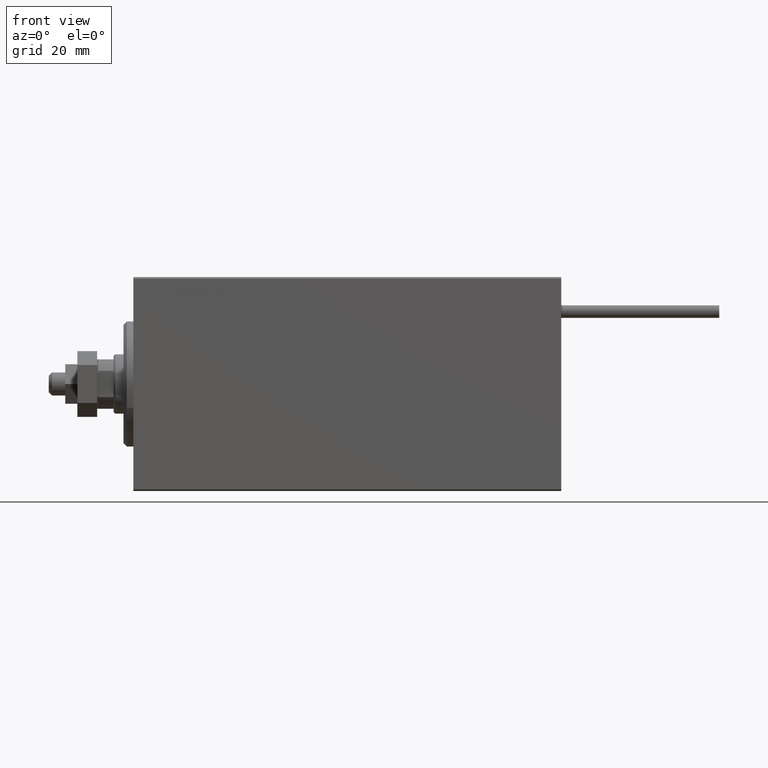
[diagram: clean part render]
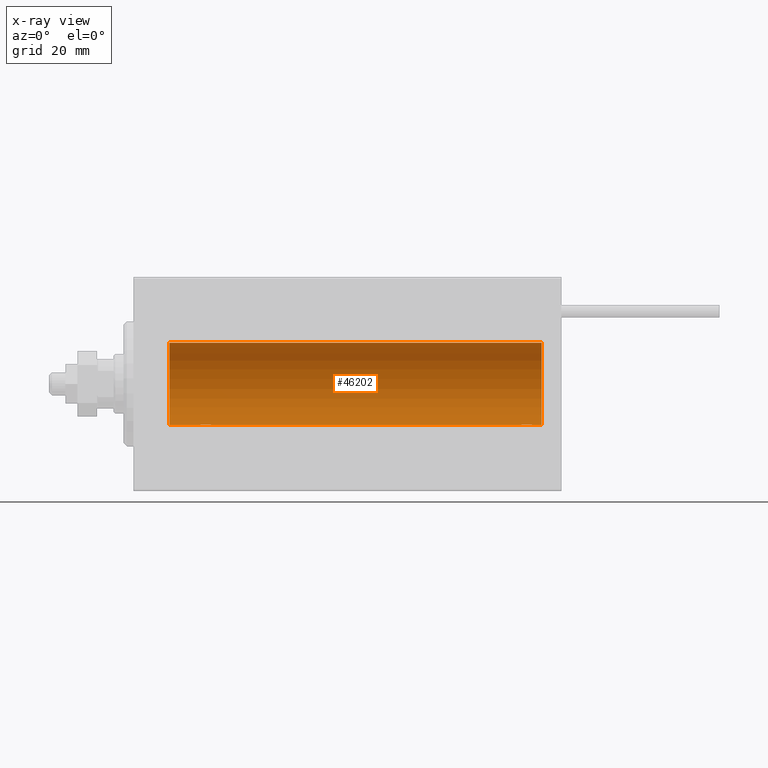
[diagram: x-ray — body ghosted, one internal face saturated and labeled with its STEP entity id]
A machine part, front view, then the same camera in x-ray: the body is ghosted and one INTERNAL B-rep face — a face not visible from any outside direction — is saturated and labeled: STEP entity #46202.
In plain terms, the highlighted cylindrical surface (partial cylindrical patch) has radius 12.5 mm, axis along (-1, -0, -0).
Its self-contained STEP definition (entity closure, byte-faithful):
#1023 = VERTEX_POINT ( 'NONE', #5973 ) ;
#1046 = DIRECTION ( 'NONE',  ( -1.000000000000000000, 0.000000000000000000, 0.000000000000000000 ) ) ;
#1244 = CARTESIAN_POINT ( 'NONE',  ( 121.2974249191616138, 0.8868029758979325550, -12.46909283808506430 ) ) ;
#1655 = DIRECTION ( 'NONE',  ( -1.000000000000000000, -0.000000000000000000, -0.000000000000000000 ) ) ;
#1696 = DIRECTION ( 'NONE',  ( 0.000000000000000000, 0.000000000000000000, 1.000000000000000000 ) ) ;
#1699 = AXIS2_PLACEMENT_3D ( 'NONE', #20491, #15907, #12105 ) ;
#2008 = CARTESIAN_POINT ( 'NONE',  ( 117.5000000000000142, -1.169483437805093529E-14, -12.50000000000000000 ) ) ;
#2039 = CARTESIAN_POINT ( 'NONE',  ( 19.99999999999999645, -3.966047509268588167E-15, -12.50000000000000000 ) ) ;
#2210 = VERTEX_POINT ( 'NONE', #23692 ) ;
#2255 = CARTESIAN_POINT ( 'NONE',  ( 120.7198079059458138, 1.590288205413961986, -12.39864157855465265 ) ) ;
#2386 = CARTESIAN_POINT ( 'NONE',  ( 20.26446744561862801, 1.002494658017155871, -12.46021263690096958 ) ) ;
#2559 = VECTOR ( 'NONE', #41301, 1000.000000000000000 ) ;
#3391 = CARTESIAN_POINT ( 'NONE',  ( 22.12992629360264729, 2.000049200055402210, -12.33895470450623044 ) ) ;
#3560 = EDGE_LOOP ( 'NONE', ( #14098, #5372, #36363, #6960, #27789, #5534, #29199, #25796 ) ) ;
#4709 = CARTESIAN_POINT ( 'NONE',  ( 117.5000000000000142, -1.169483437805093529E-14, -12.50000000000000000 ) ) ;
#4760 = CARTESIAN_POINT ( 'NONE',  ( 20.10252270298193622, 0.6455696738844897142, -12.48390768591463207 ) ) ;
#4808 = CARTESIAN_POINT ( 'NONE',  ( 124.0000000000000000, 1.530808498934191521E-15, -12.50000000000000000 ) ) ;
#4960 = CYLINDRICAL_SURFACE ( 'NONE', #1699, 12.50000000000000000 ) ;
#5372 = ORIENTED_EDGE ( 'NONE', *, *, #17169, .F. ) ;
#5534 = ORIENTED_EDGE ( 'NONE', *, *, #38402, .T. ) ;
#5576 = CARTESIAN_POINT ( 'NONE',  ( 119.6299262936026793, 2.000049200055385334, -12.33895470450623399 ) ) ;
#5837 = CARTESIAN_POINT ( 'NONE',  ( 120.3865631353301922, 1.797558627508983875, -12.37018026341339194 ) ) ;
#5973 = CARTESIAN_POINT ( 'NONE',  ( 10.99999999999999645, 0.000000000000000000, 12.50000000000000000 ) ) ;
#6896 = DIRECTION ( 'NONE',  ( -1.000000000000000000, -0.000000000000000000, -0.000000000000000000 ) ) ;
#6960 = ORIENTED_EDGE ( 'NONE', *, *, #18082, .T. ) ;
#7144 = CARTESIAN_POINT ( 'NONE',  ( 124.0000000000000000, 1.530808498934191521E-15, -12.50000000000000000 ) ) ;
#7320 = CARTESIAN_POINT ( 'NONE',  ( 121.5000000000000284, 1.530808426268740384E-15, -12.50000000000000000 ) ) ;
#8592 = CARTESIAN_POINT ( 'NONE',  ( 19.99999999999999645, -3.966047509268588167E-15, -12.50000000000000000 ) ) ;
#8832 = EDGE_CURVE ( 'NONE', #32934, #2210, #36894, .T. ) ;
#8894 = LINE ( 'NONE', #42980, #24197 ) ;
#9405 = CARTESIAN_POINT ( 'NONE',  ( 118.2703350612685398, 1.598680238462349301, -12.39873273758732353 ) ) ;
#9920 = CARTESIAN_POINT ( 'NONE',  ( 117.9939836632721324, 1.322451657002056358, -12.43019346654085311 ) ) ;
#10158 = CARTESIAN_POINT ( 'NONE',  ( 121.0073355036432474, 1.321095788880528366, -12.43034574091278266 ) ) ;
#10289 = CARTESIAN_POINT ( 'NONE',  ( 23.21980790594580313, 1.590288205413975309, -12.39864157855465088 ) ) ;
#10533 = CARTESIAN_POINT ( 'NONE',  ( 23.50733550364322255, 1.321095788880538136, -12.43034574091277911 ) ) ;
#10784 = CARTESIAN_POINT ( 'NONE',  ( 23.73470742397611843, 1.003863686549172352, -12.46009879577771606 ) ) ;
#11028 = CARTESIAN_POINT ( 'NONE',  ( 20.99316879552500481, 1.747608771958139906, -12.37764291807175354 ) ) ;
#11137 = EDGE_CURVE ( 'NONE', #32934, #49894, #26473, .T. ) ;
#12105 = DIRECTION ( 'NONE',  ( 0.000000000000000000, 0.000000000000000000, 1.000000000000000000 ) ) ;
#14098 = ORIENTED_EDGE ( 'NONE', *, *, #18528, .F. ) ;
#14344 = CARTESIAN_POINT ( 'NONE',  ( 24.00000000000000711, 0.1306394121199392910, -12.50000000000000533 ) ) ;
#14452 = AXIS2_PLACEMENT_3D ( 'NONE', #21031, #36550, #1696 ) ;
#14850 = CARTESIAN_POINT ( 'NONE',  ( 22.26269462454597914, 1.986986967296540119, -12.34109209020652465 ) ) ;
#15341 = CARTESIAN_POINT ( 'NONE',  ( 22.51937350851555308, 1.935814255713574905, -12.34922241902463114 ) ) ;
#15759 = DIRECTION ( 'NONE',  ( -1.000000000000000000, -0.000000000000000000, -0.000000000000000000 ) ) ;
#15907 = DIRECTION ( 'NONE',  ( -1.000000000000000000, -0.000000000000000000, -0.000000000000000000 ) ) ;
#17169 = EDGE_CURVE ( 'NONE', #20476, #18664, #24157, .T. ) ;
#17211 = CARTESIAN_POINT ( 'NONE',  ( 24.00000000000000000, 1.530808426277417854E-15, -12.50000000000000000 ) ) ;
#17783 = CARTESIAN_POINT ( 'NONE',  ( 117.7030078837138518, 0.8876934327478018805, -12.46903010196599659 ) ) ;
#17915 = CARTESIAN_POINT ( 'NONE',  ( 20.40963319990594016, 1.219754986802279451, -12.44082361696003503 ) ) ;
#18030 = CARTESIAN_POINT ( 'NONE',  ( 121.3977303139366200, 0.6448065707252962353, -12.48394649977302606 ) ) ;
#18082 = EDGE_CURVE ( 'NONE', #1023, #29356, #46129, .T. ) ;
#18528 = EDGE_CURVE ( 'NONE', #18664, #2210, #8894, .T. ) ;
#18660 = CARTESIAN_POINT ( 'NONE',  ( 24.00000000000000000, 1.530808426277417854E-15, -12.50000000000000000 ) ) ;
#18664 = VERTEX_POINT ( 'NONE', #4808 ) ;
#19152 = CARTESIAN_POINT ( 'NONE',  ( 20.49398366327207910, 1.322451657002076120, -12.43019346654084956 ) ) ;
#20374 = VECTOR ( 'NONE', #6896, 1000.000000000000000 ) ;
#20476 = VERTEX_POINT ( 'NONE', #31175 ) ;
#20491 = CARTESIAN_POINT ( 'NONE',  ( 124.0000000000000000, 0.000000000000000000, 0.000000000000000000 ) ) ;
#20495 = LINE ( 'NONE', #32695, #34836 ) ;
#20593 = CARTESIAN_POINT ( 'NONE',  ( 119.7626946245460147, 1.986986967296522799, -12.34109209020653175 ) ) ;
#21031 = CARTESIAN_POINT ( 'NONE',  ( 10.99999999999999645, 0.000000000000000000, 0.000000000000000000 ) ) ;
#21094 = CARTESIAN_POINT ( 'NONE',  ( 118.4931687955250226, 1.747608771958121920, -12.37764291807175709 ) ) ;
#21733 = CARTESIAN_POINT ( 'NONE',  ( 20.06395648222636652, 0.5184196815546032733, -12.48990118705761532 ) ) ;
#23161 = VERTEX_POINT ( 'NONE', #2039 ) ;
#23692 = CARTESIAN_POINT ( 'NONE',  ( 121.5000000000000284, 1.530808426268740384E-15, -12.50000000000000000 ) ) ;
#24157 = CIRCLE ( 'NONE', #25789, 12.50000000000000000 ) ;
#24197 = VECTOR ( 'NONE', #15759, 1000.000000000000000 ) ;
#24924 = CARTESIAN_POINT ( 'NONE',  ( 119.2378819366838059, 1.999901172190663212, -12.33897869807161563 ) ) ;
#25427 = CARTESIAN_POINT ( 'NONE',  ( 117.7644674456187062, 1.002494658017142104, -12.46021263690097669 ) ) ;
#25667 = CARTESIAN_POINT ( 'NONE',  ( 121.0899140868063313, 1.220297236145710729, -12.44076681548080998 ) ) ;
#25789 = AXIS2_PLACEMENT_3D ( 'NONE', #28528, #1046, #44067 ) ;
#25796 = ORIENTED_EDGE ( 'NONE', *, *, #8832, .T. ) ;
#26027 = CARTESIAN_POINT ( 'NONE',  ( 124.0000000000000000, 0.000000000000000000, 12.50000000000000000 ) ) ;
#26044 = CARTESIAN_POINT ( 'NONE',  ( 21.47436412829510033, 1.947190906025044077, -12.34781876294798053 ) ) ;
#26473 = LINE ( 'NONE', #7144, #20374 ) ;
#27789 = ORIENTED_EDGE ( 'NONE', *, *, #33011, .F. ) ;
#28341 = EDGE_CURVE ( 'NONE', #20476, #1023, #45379, .T. ) ;
#28528 = CARTESIAN_POINT ( 'NONE',  ( 124.0000000000000000, 0.000000000000000000, 0.000000000000000000 ) ) ;
#29199 = ORIENTED_EDGE ( 'NONE', *, *, #11137, .F. ) ;
#29225 = CARTESIAN_POINT ( 'NONE',  ( 117.5639564822263878, 0.5184196815545927262, -12.48990118705761887 ) ) ;
#29356 = VERTEX_POINT ( 'NONE', #49861 ) ;
#29469 = CARTESIAN_POINT ( 'NONE',  ( 120.8210283350070142, 1.507394620545629671, -12.40913174964213361 ) ) ;
#30590 = CARTESIAN_POINT ( 'NONE',  ( 22.64415233770293412, 1.897967064543090165, -12.35517291625592051 ) ) ;
#31175 = CARTESIAN_POINT ( 'NONE',  ( 124.0000000000000000, 0.000000000000000000, 12.50000000000000000 ) ) ;
#32541 = CARTESIAN_POINT ( 'NONE',  ( 117.5130120851634956, 0.2624928479599785702, -12.49789934882883458 ) ) ;
#32695 = CARTESIAN_POINT ( 'NONE',  ( 124.0000000000000000, 1.530808498934191521E-15, -12.50000000000000000 ) ) ;
#32934 = VERTEX_POINT ( 'NONE', #4709 ) ;
#33011 = EDGE_CURVE ( 'NONE', #23161, #29356, #20495, .T. ) ;
#33429 = CARTESIAN_POINT ( 'NONE',  ( 19.99999999999999645, 0.1323736289504319763, -12.50000000000000000 ) ) ;
#33670 = CARTESIAN_POINT ( 'NONE',  ( 22.88656313533016373, 1.797558627508998086, -12.37018026341338839 ) ) ;
#33927 = CARTESIAN_POINT ( 'NONE',  ( 23.32102833500698225, 1.507394620545640773, -12.40913174964213184 ) ) ;
#34178 = CARTESIAN_POINT ( 'NONE',  ( 23.89773031393658087, 0.6448065707253023415, -12.48394649977302073 ) ) ;
#34294 = CARTESIAN_POINT ( 'NONE',  ( 121.5000000000000284, 0.1306394121199379310, -12.50000000000000178 ) ) ;
#34473 = B_SPLINE_CURVE_WITH_KNOTS ( 'NONE', 3,
 ( #8592, #33429, #39618, #21733, #4760, #37238, #2386, #17915, #19152, #34670, #11028, #26044, #50197, #3391, #14850, #15341, #30590, #33670, #38475, #10289, #33927, #10533, #41813, #10784, #37730, #34178, #49456, #49204, #14344, #18660 ),
 .UNSPECIFIED., .F., .F.,
 ( 4, 2, 2, 2, 2, 2, 2, 2, 2, 2, 2, 2, 2, 2, 4 ),
 ( 3.611342868676865251E-19, 0.0003914362731607586585, 0.0007828725463215168833, 0.001174308819482275217, 0.001565745092643033550, 0.002348617638964549999, 0.003131490185286066666, 0.003522926458446830420, 0.003914362731607594174, 0.004305799004768357495, 0.004697235277929121683, 0.005088671551089885003, 0.005480107824250649191, 0.005871544097411412512, 0.006262980370572176700 ),
 .UNSPECIFIED. ) ;
#34670 = CARTESIAN_POINT ( 'NONE',  ( 20.77033506126850426, 1.598680238462369951, -12.39873273758732175 ) ) ;
#34836 = VECTOR ( 'NONE', #1655, 1000.000000000000000 ) ;
#36099 = CARTESIAN_POINT ( 'NONE',  ( 121.2347074239761611, 1.003863686549161915, -12.46009879577771606 ) ) ;
#36363 = ORIENTED_EDGE ( 'NONE', *, *, #28341, .T. ) ;
#36550 = DIRECTION ( 'NONE',  ( -1.000000000000000000, 0.000000000000000000, 0.000000000000000000 ) ) ;
#36894 = B_SPLINE_CURVE_WITH_KNOTS ( 'NONE', 3,
 ( #2008, #44769, #32541, #29225, #40177, #17783, #25427, #37104, #9920, #9405, #21094, #48834, #24924, #5576, #20593, #40434, #48334, #5837, #40941, #2255, #29469, #10158, #25667, #36099, #1244, #18030, #50064, #49814, #34294, #7320 ),
 .UNSPECIFIED., .F., .F.,
 ( 4, 2, 2, 2, 2, 2, 2, 2, 2, 2, 2, 2, 2, 2, 4 ),
 ( 1.846017744464648771E-18, 0.0003914362731607729158, 0.0007828725463215439884, 0.001174308819482315115, 0.001565745092643086242, 0.002348617638964598138, 0.003131490185286110901, 0.003522926458446867717, 0.003914362731607624532, 0.004305799004768380914, 0.004697235277929136428, 0.005088671551089892810, 0.005480107824250649191, 0.005871544097411406440, 0.006262980370572161955 ),
 .UNSPECIFIED. ) ;
#37104 = CARTESIAN_POINT ( 'NONE',  ( 117.9096331999059828, 1.219754986802265462, -12.44082361696003680 ) ) ;
#37238 = CARTESIAN_POINT ( 'NONE',  ( 20.20300788371381273, 0.8876934327478117615, -12.46903010196599304 ) ) ;
#37730 = CARTESIAN_POINT ( 'NONE',  ( 23.79742491916155700, 0.8868029758979399935, -12.46909283808506430 ) ) ;
#38402 = EDGE_CURVE ( 'NONE', #23161, #49894, #34473, .T. ) ;
#38475 = CARTESIAN_POINT ( 'NONE',  ( 23.00335814299181436, 1.734998657226765939, -12.37922086519035325 ) ) ;
#39618 = CARTESIAN_POINT ( 'NONE',  ( 20.01301208516349206, 0.2624928479599882847, -12.49789934882883458 ) ) ;
#40177 = CARTESIAN_POINT ( 'NONE',  ( 117.6025227029819717, 0.6455696738844808324, -12.48390768591463384 ) ) ;
#40434 = CARTESIAN_POINT ( 'NONE',  ( 120.0193735085155993, 1.935814255713557142, -12.34922241902463114 ) ) ;
#40941 = CARTESIAN_POINT ( 'NONE',  ( 120.5033581429918570, 1.734998657226752616, -12.37922086519036036 ) ) ;
#41301 = DIRECTION ( 'NONE',  ( -1.000000000000000000, -0.000000000000000000, -0.000000000000000000 ) ) ;
#41813 = CARTESIAN_POINT ( 'NONE',  ( 23.58991408680628155, 1.220297236145721609, -12.44076681548080288 ) ) ;
#42980 = CARTESIAN_POINT ( 'NONE',  ( 124.0000000000000000, 1.530808498934191521E-15, -12.50000000000000000 ) ) ;
#43382 = FACE_OUTER_BOUND ( 'NONE', #3560, .T. ) ;
#44067 = DIRECTION ( 'NONE',  ( 0.000000000000000000, 0.000000000000000000, 1.000000000000000000 ) ) ;
#44769 = CARTESIAN_POINT ( 'NONE',  ( 117.5000000000000142, 0.1323736289504215957, -12.50000000000000178 ) ) ;
#45379 = LINE ( 'NONE', #26027, #2559 ) ;
#46129 = CIRCLE ( 'NONE', #14452, 12.50000000000000000 ) ;
#46202 = ADVANCED_FACE ( 'NONE', ( #43382 ), #4960, .F. ) ;
#48334 = CARTESIAN_POINT ( 'NONE',  ( 120.1441523377029768, 1.897967064543075066, -12.35517291625592406 ) ) ;
#48834 = CARTESIAN_POINT ( 'NONE',  ( 118.9743641282951074, 1.947190906025027424, -12.34781876294798941 ) ) ;
#49204 = CARTESIAN_POINT ( 'NONE',  ( 23.98690384766256400, 0.2633501011236120681, -12.49788564268284041 ) ) ;
#49456 = CARTESIAN_POINT ( 'NONE',  ( 23.93561774521849728, 0.5201193324741352209, -12.48983485452574982 ) ) ;
#49814 = CARTESIAN_POINT ( 'NONE',  ( 121.4869038476625889, 0.2633501011236119016, -12.49788564268284041 ) ) ;
#49861 = CARTESIAN_POINT ( 'NONE',  ( 10.99999999999999645, 1.530808498934191521E-15, -12.50000000000000000 ) ) ;
#49894 = VERTEX_POINT ( 'NONE', #17211 ) ;
#50064 = CARTESIAN_POINT ( 'NONE',  ( 121.4356177452185506, 0.5201193324741325563, -12.48983485452575337 ) ) ;
#50197 = CARTESIAN_POINT ( 'NONE',  ( 21.73788193668374902, 1.999901172190678533, -12.33897869807161385 ) ) ;